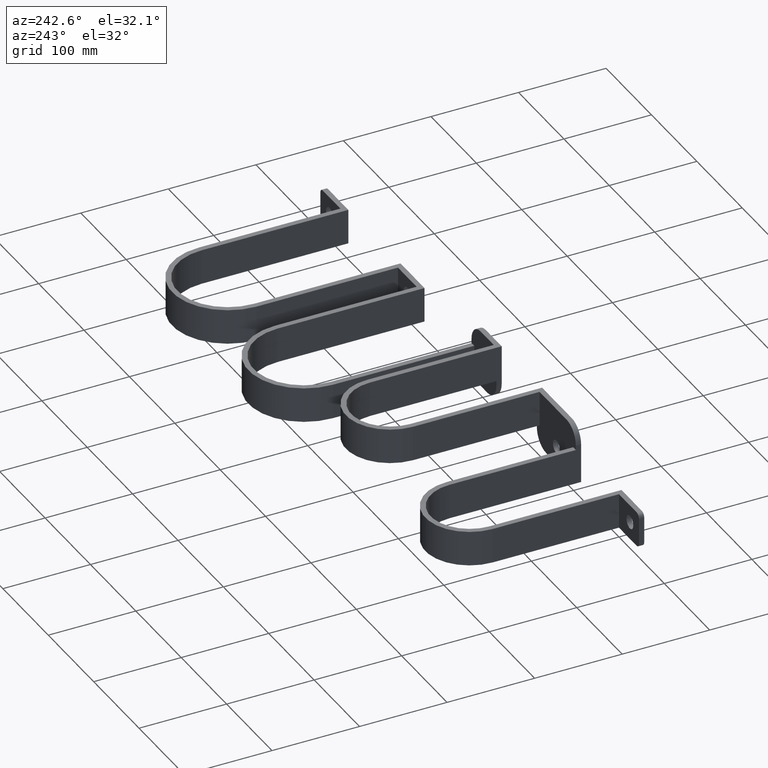
[diagram: clean part render]
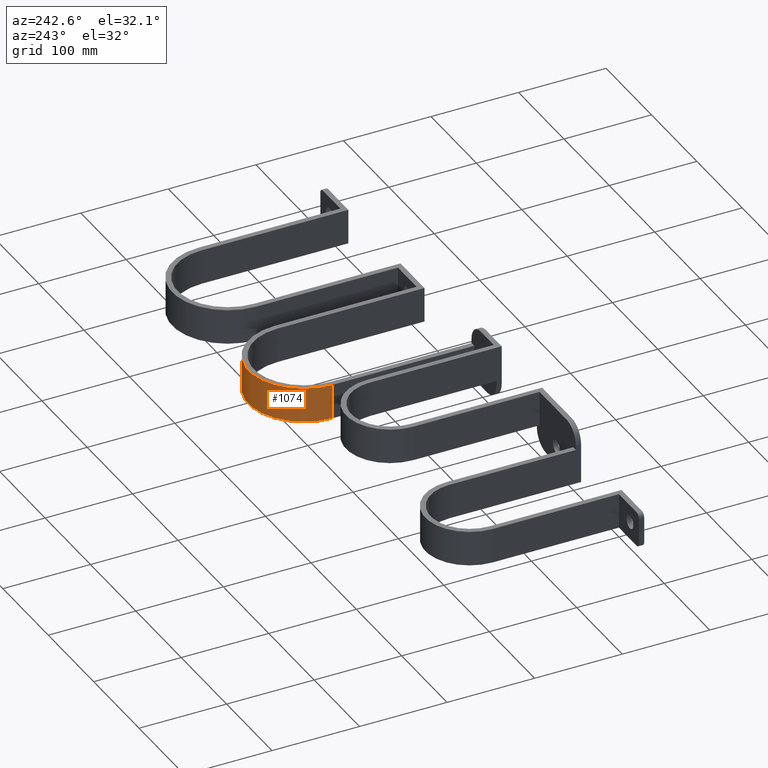
[diagram: same view with one face highlighted and labeled with its STEP entity id]
A machine part, auxiliary view. The second image highlights one B-rep face of the part: STEP entity #1074.
In plain terms, the highlighted cylindrical surface (partial cylindrical patch) has radius 63.5 mm, axis along (-0, -0, -1).
Its self-contained STEP definition (entity closure, byte-faithful):
#7 = DIRECTION ( 'NONE',  ( -0.000000000000000000, -0.000000000000000000, -1.000000000000000000 ) ) ;
#102 = CARTESIAN_POINT ( 'NONE',  ( 0.000000000000000000, 167.4999999999999716, -20.00000000000000000 ) ) ;
#114 = DIRECTION ( 'NONE',  ( -0.000000000000000000, -0.000000000000000000, -1.000000000000000000 ) ) ;
#185 = DIRECTION ( 'NONE',  ( -0.000000000000000000, -0.000000000000000000, -1.000000000000000000 ) ) ;
#270 = DIRECTION ( 'NONE',  ( -1.000000000000000000, 0.000000000000000000, 0.000000000000000000 ) ) ;
#309 = ORIENTED_EDGE ( 'NONE', *, *, #1811, .F. ) ;
#401 = AXIS2_PLACEMENT_3D ( 'NONE', #1699, #7, #2521 ) ;
#436 = VERTEX_POINT ( 'NONE', #1354 ) ;
#475 = CYLINDRICAL_SURFACE ( 'NONE', #539, 63.50000000000001421 ) ;
#505 = CARTESIAN_POINT ( 'NONE',  ( 63.50000000000001421, 167.4999999999999716, -20.00000000000000000 ) ) ;
#539 = AXIS2_PLACEMENT_3D ( 'NONE', #2365, #867, #270 ) ;
#867 = DIRECTION ( 'NONE',  ( -0.000000000000000000, -0.000000000000000000, -1.000000000000000000 ) ) ;
#972 = CIRCLE ( 'NONE', #1323, 63.50000000000001421 ) ;
#1074 = ADVANCED_FACE ( 'NONE', ( #1757 ), #475, .T. ) ;
#1148 = VECTOR ( 'NONE', #185, 1000.000000000000000 ) ;
#1207 = CARTESIAN_POINT ( 'NONE',  ( 63.50000000000001421, 167.4999999999999716, 20.00000000000000000 ) ) ;
#1238 = CARTESIAN_POINT ( 'NONE',  ( -63.50000000000001421, 167.4999999999999716, -20.00000000000000000 ) ) ;
#1323 = AXIS2_PLACEMENT_3D ( 'NONE', #102, #2422, #2590 ) ;
#1342 = CARTESIAN_POINT ( 'NONE',  ( -63.50000000000001421, 167.4999999999999716, 20.00000000000000000 ) ) ;
#1354 = CARTESIAN_POINT ( 'NONE',  ( -63.50000000000001421, 167.4999999999999716, 20.00000000000000000 ) ) ;
#1400 = LINE ( 'NONE', #1207, #1148 ) ;
#1473 = EDGE_CURVE ( 'NONE', #2361, #2232, #1400, .T. ) ;
#1477 = ORIENTED_EDGE ( 'NONE', *, *, #1473, .T. ) ;
#1548 = EDGE_LOOP ( 'NONE', ( #309, #2670, #1654, #1477 ) ) ;
#1583 = VERTEX_POINT ( 'NONE', #1238 ) ;
#1604 = EDGE_CURVE ( 'NONE', #436, #2361, #1728, .T. ) ;
#1654 = ORIENTED_EDGE ( 'NONE', *, *, #1604, .T. ) ;
#1699 = CARTESIAN_POINT ( 'NONE',  ( 0.000000000000000000, 167.4999999999999716, 20.00000000000000000 ) ) ;
#1728 = CIRCLE ( 'NONE', #401, 63.50000000000001421 ) ;
#1731 = VECTOR ( 'NONE', #114, 1000.000000000000000 ) ;
#1757 = FACE_OUTER_BOUND ( 'NONE', #1548, .T. ) ;
#1811 = EDGE_CURVE ( 'NONE', #1583, #2232, #972, .T. ) ;
#1858 = CARTESIAN_POINT ( 'NONE',  ( 63.50000000000001421, 167.4999999999999716, 20.00000000000000000 ) ) ;
#2085 = EDGE_CURVE ( 'NONE', #436, #1583, #2368, .T. ) ;
#2232 = VERTEX_POINT ( 'NONE', #505 ) ;
#2361 = VERTEX_POINT ( 'NONE', #1858 ) ;
#2365 = CARTESIAN_POINT ( 'NONE',  ( 0.000000000000000000, 167.4999999999999716, 20.00000000000000000 ) ) ;
#2368 = LINE ( 'NONE', #1342, #1731 ) ;
#2422 = DIRECTION ( 'NONE',  ( -0.000000000000000000, -0.000000000000000000, -1.000000000000000000 ) ) ;
#2521 = DIRECTION ( 'NONE',  ( 1.000000000000000000, 0.000000000000000000, 0.000000000000000000 ) ) ;
#2590 = DIRECTION ( 'NONE',  ( 1.000000000000000000, 0.000000000000000000, 0.000000000000000000 ) ) ;
#2670 = ORIENTED_EDGE ( 'NONE', *, *, #2085, .F. ) ;